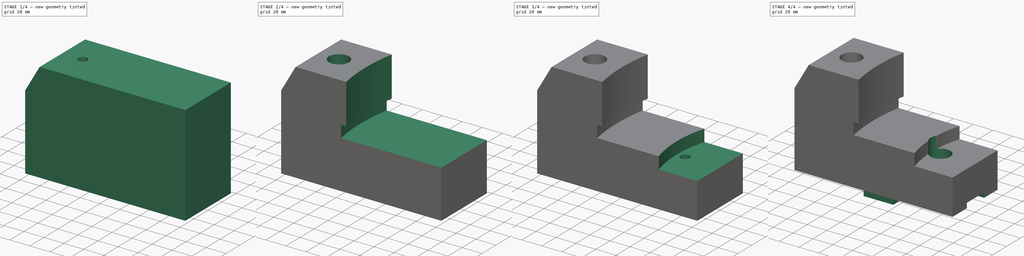
[diagram: build sequence overview — one tinted view per stage of 4, left to right]
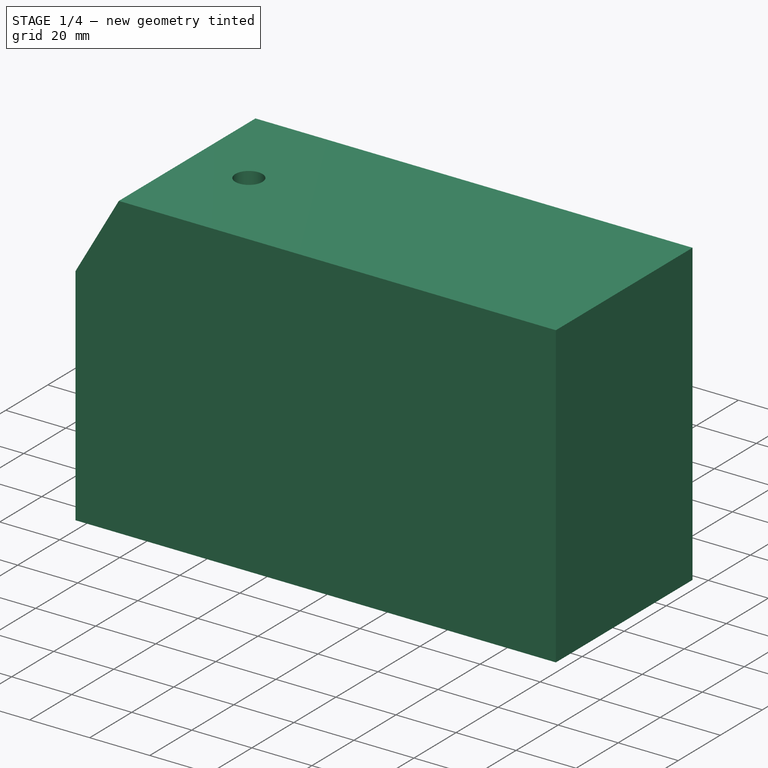
[diagram: stage 1 of 4 — iso view after this stage's code; geometry added in this stage tinted green]
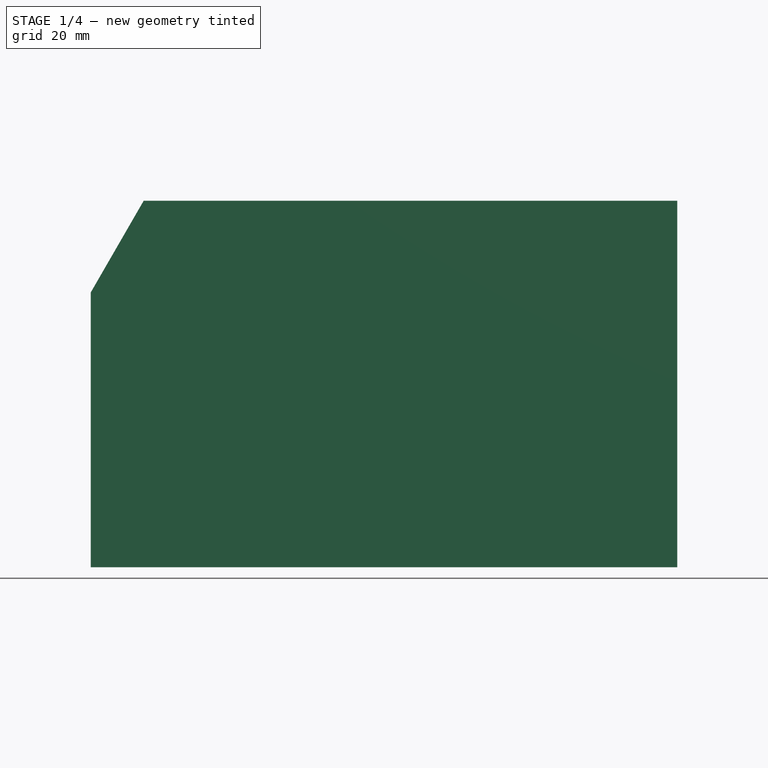
[diagram: stage 1 of 4 — front view after this stage's code; geometry added in this stage tinted green]
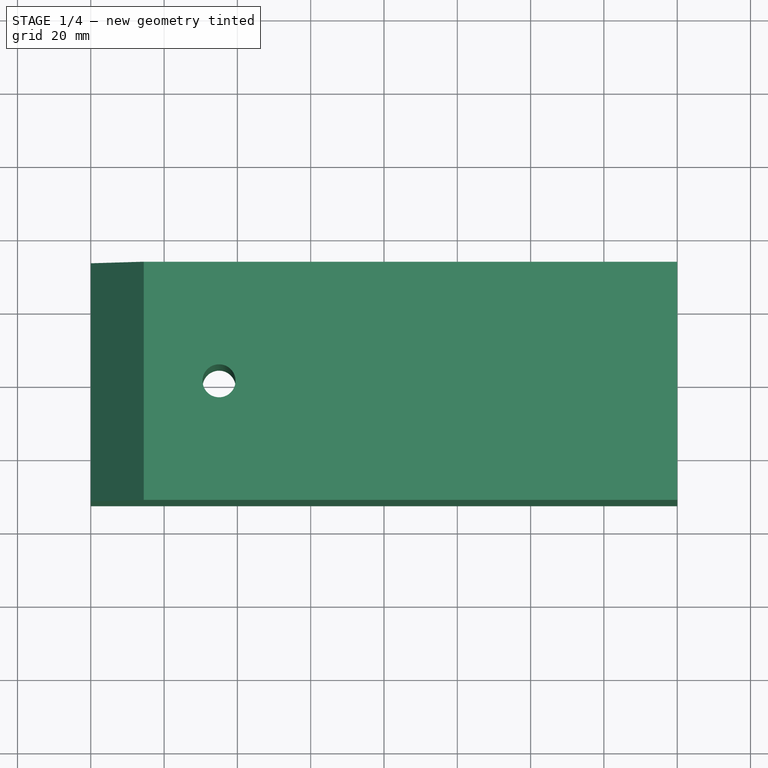
[diagram: stage 1 of 4 — top view after this stage's code; geometry added in this stage tinted green]
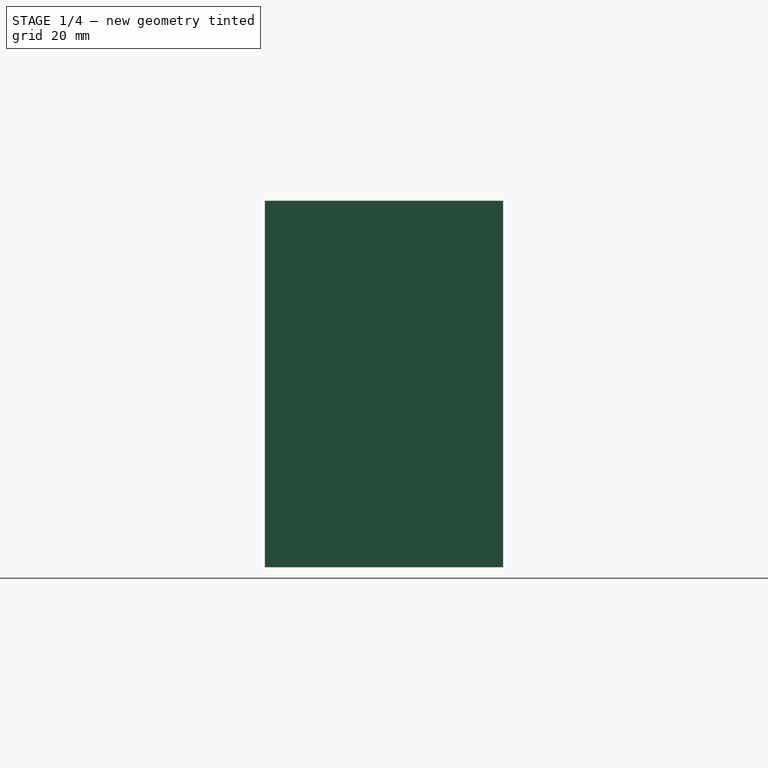
[diagram: stage 1 of 4 — right view after this stage's code; geometry added in this stage tinted green]
FCSTD DOCUMENT  (FreeCAD 0.16R)
Label: Ejer final 24
License: All rights reserved
LicenseURL: http://en.wikipedia.org/wiki/All_rights_reserved
objects: Sketcher::SketchObject×11, PartDesign::Pocket×9, PartDesign::Pad×2
note: 33 computed .brp shape members not serialized (recipe doc carries the construction recipe); baked Part::Feature solids carry a one-line shape summary decoded from their .brp

FEATURE [Sketcher::SketchObject] Sketch
  sketch-geometry (4):
    g0: LineSegment StartX=-80 StartY=32.5 StartZ=0 EndX=80 EndY=32.5 EndZ=0
    g1: LineSegment StartX=80 StartY=32.5 StartZ=0 EndX=80 EndY=-32.5 EndZ=0
    g2: LineSegment StartX=80 StartY=-32.5 StartZ=0 EndX=-80 EndY=-32.5 EndZ=0
    g3: LineSegment StartX=-80 StartY=-32.5 StartZ=0 EndX=-80 EndY=32.5 EndZ=0
  constraints (12):
    c: Coincident(g0,g1)
    c: Coincident(g1,g2)
    c: Coincident(g2,g3)
    c: Coincident(g3,g0)
    c: Horizontal(g0)
    c: Horizontal(g2)
    c: Vertical(g1)
    c: Vertical(g3)
    c: Symmetric(g2,g0,g-1)
    c: Symmetric(g0,g0,g-2)
    c: DistanceY(g3,g3) = 65
    c: DistanceX(g0,g0) = 160
FEATURE [PartDesign::Pad] Pad
  Length = 100
  Length2 = 100
  Sketch = -> Sketch
  Type = 0
FEATURE [Sketcher::SketchObject] Sketch001
  ExternalGeometry = -> [Pad]
  Placement = pos=(0,-32.5,0) rot=(1,0,0;1.5708rad)
  Support = -> Pad [Face3]
  sketch-geometry (3):
    g0: LineSegment StartX=-80 StartY=100 StartZ=0 EndX=-80 EndY=75 EndZ=0
    g1: LineSegment StartX=-80 StartY=75 StartZ=0 EndX=-65.5662 EndY=100 EndZ=0
    g2: LineSegment StartX=-65.5662 StartY=100 StartZ=0 EndX=-80 EndY=100 EndZ=0
  constraints (8):
    c: Coincident(g0,g-3)
    c: Vertical(g0)
    c: DistanceY(g0,g0) = 25
    c: Coincident(g1,g0)
    c: Angle(g1,g0) = 0.523599
    c: PointOnObject(g1,g-3)
    c: Coincident(g2,g1)
    c: Coincident(g2,g0)
FEATURE [PartDesign::Pocket] Pocket
  Length = 5
  Sketch = -> Sketch001
  Type = 1
FEATURE [Sketcher::SketchObject] Sketch002
  ExternalGeometry = -> [Pocket]
  Placement = pos=(0,0,100) rot=(0,0,1;0rad)
  Support = -> Pocket [Face4]
  sketch-geometry (1):
    g0: Circle CenterX=-45 CenterY=0 CenterZ=0 NormalX=0 NormalY=0 NormalZ=1 Radius=4.5
  constraints (3):
    c: Radius(g0) = 4.5
    c: DistanceX(g0,g-3) = 125
    c: PointOnObject(g0,g-1)
FEATURE [PartDesign::Pocket] Pocket001
  Length = 5
  Sketch = -> Sketch002
  Type = 1
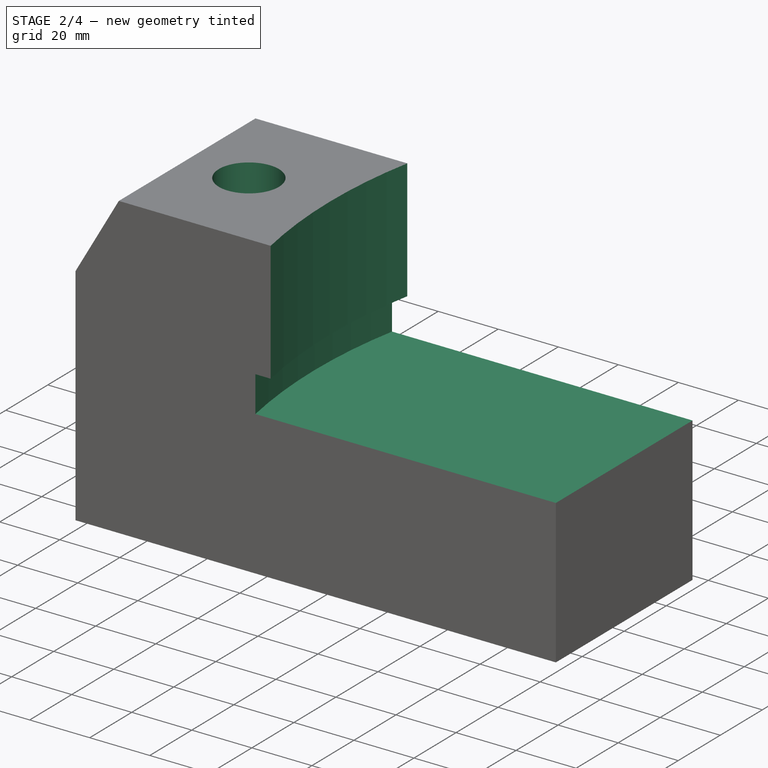
[diagram: stage 2 of 4 — iso view after this stage's code; geometry added in this stage tinted green]
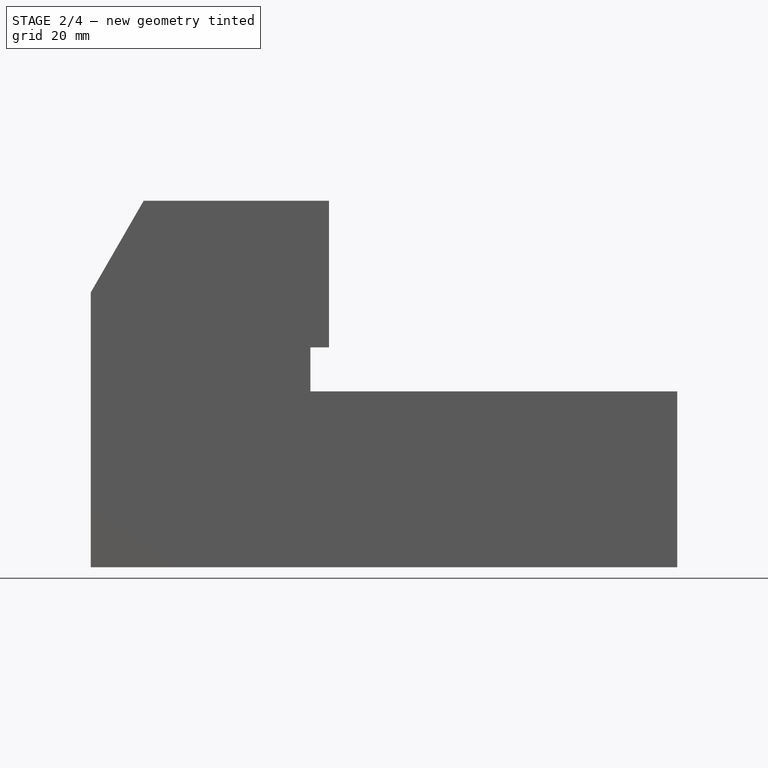
[diagram: stage 2 of 4 — front view after this stage's code; geometry added in this stage tinted green]
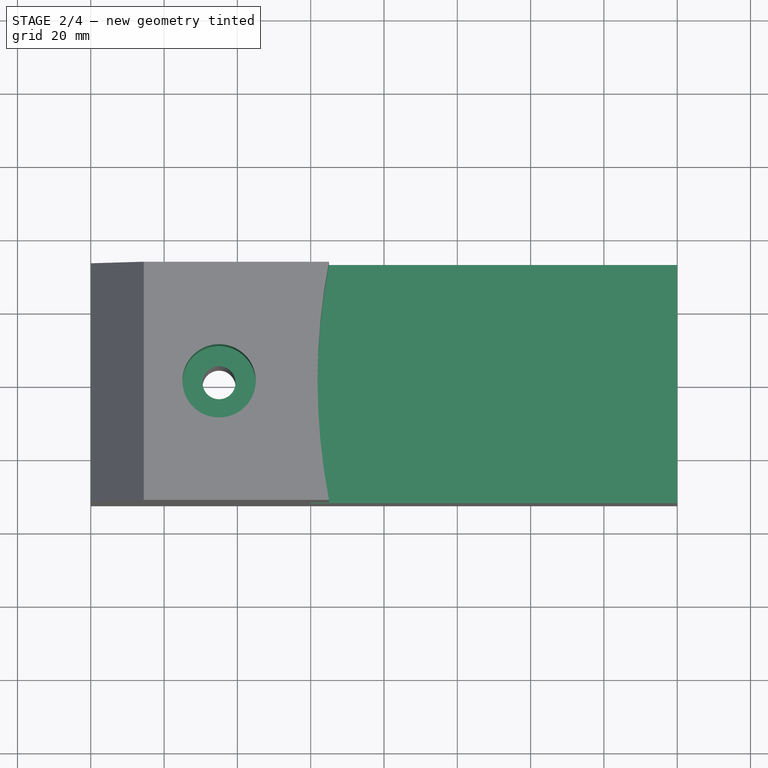
[diagram: stage 2 of 4 — top view after this stage's code; geometry added in this stage tinted green]
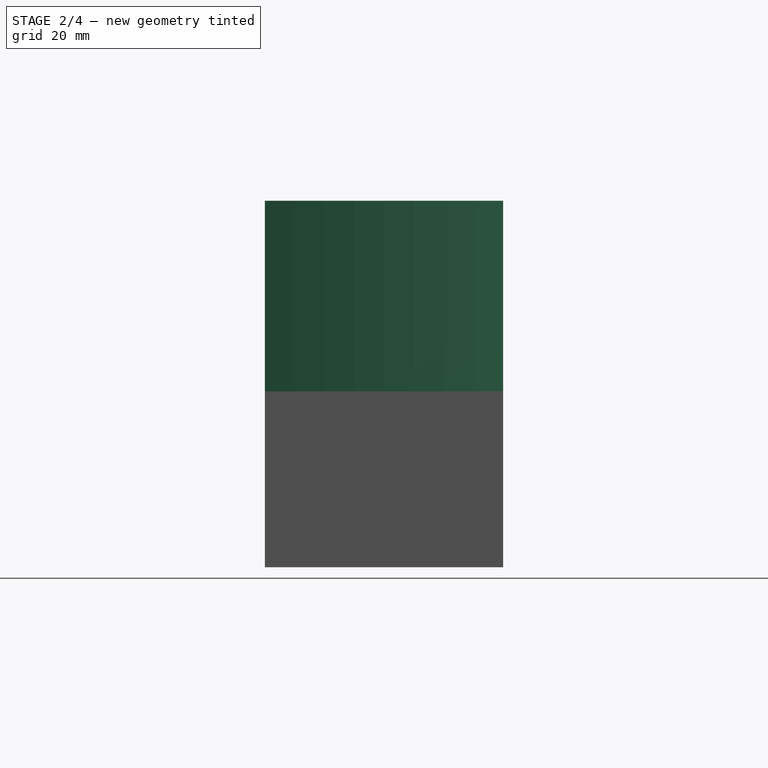
[diagram: stage 2 of 4 — right view after this stage's code; geometry added in this stage tinted green]
FEATURE [Sketcher::SketchObject] Sketch003
  ExternalGeometry = -> [Pocket001]
  Placement = pos=(0,0,100) rot=(0,0,1;0rad)
  Support = -> Pocket001 [Face4]
  sketch-geometry (1):
    g0: Circle CenterX=-45 CenterY=0 CenterZ=0 NormalX=0 NormalY=0 NormalZ=1 Radius=10
  constraints (2):
    c: Coincident(g0,g-3)
    c: Radius(g0) = 10
FEATURE [PartDesign::Pocket] Pocket002
  Length = 30
  Sketch = -> Sketch003
  Type = 0
FEATURE [Sketcher::SketchObject] Sketch004
  ExternalGeometry = -> [Pocket002]
  Placement = pos=(0,0,100) rot=(0,0,1;0rad)
  Support = -> Pocket002 [Face4]
  sketch-geometry (2):
    g0: LineSegment [constr] StartX=80 StartY=32.5 StartZ=0 EndX=-15 EndY=32.5 EndZ=0
    g1: Circle CenterX=151.864 CenterY=0 CenterZ=0 NormalX=0 NormalY=0 NormalZ=1 Radius=170
  constraints (6):
    c: Coincident(g0,g-3)
    c: PointOnObject(g0,g-3)
    c: DistanceX(g0,g0) = 95
    c: PointOnObject(g1,g-1)
    c: Radius(g1) = 170
    c: PointOnObject(g0,g1)
FEATURE [PartDesign::Pocket] Pocket003
  Length = 40
  Sketch = -> Sketch004
  Type = 0
FEATURE [Sketcher::SketchObject] Sketch005
  ExternalGeometry = -> [Pocket003]
  Placement = pos=(0,0,60) rot=(0,0,1;0rad)
  Support = -> Pocket003 [Face4]
  sketch-geometry (1):
    g0: Circle CenterX=151.864 CenterY=0 CenterZ=0 NormalX=0 NormalY=0 NormalZ=1 Radius=175
  constraints (2):
    c: Coincident(g0,g-3)
    c: Radius(g0) = 175
FEATURE [PartDesign::Pocket] Pocket004
  Length = 12
  Sketch = -> Sketch005
  Type = 0
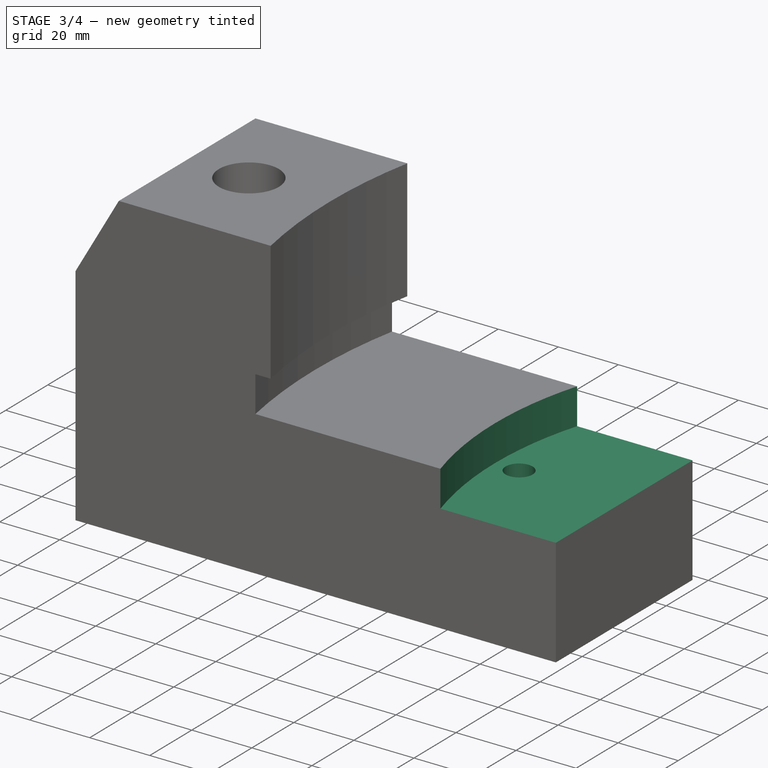
[diagram: stage 3 of 4 — iso view after this stage's code; geometry added in this stage tinted green]
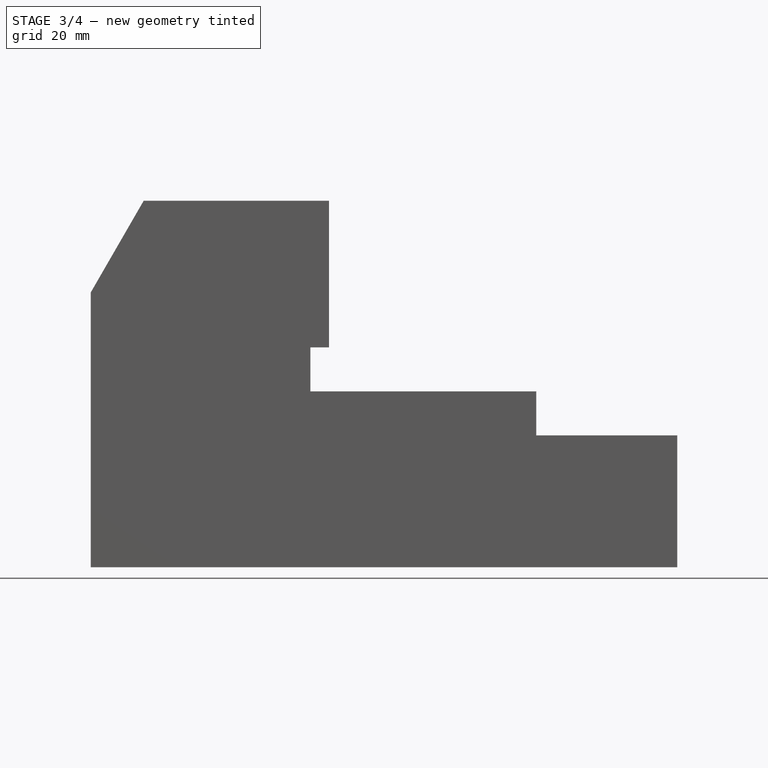
[diagram: stage 3 of 4 — front view after this stage's code; geometry added in this stage tinted green]
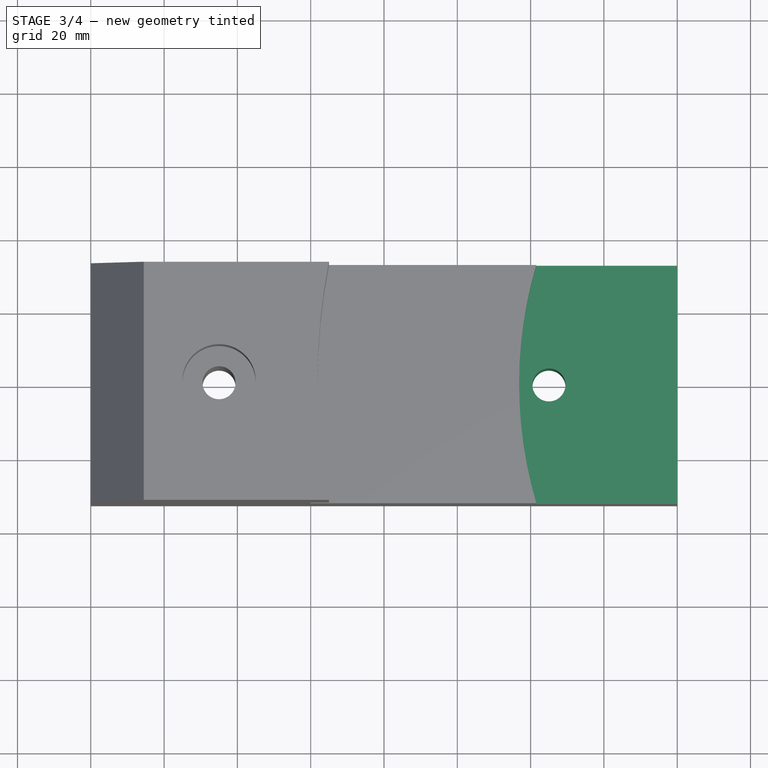
[diagram: stage 3 of 4 — top view after this stage's code; geometry added in this stage tinted green]
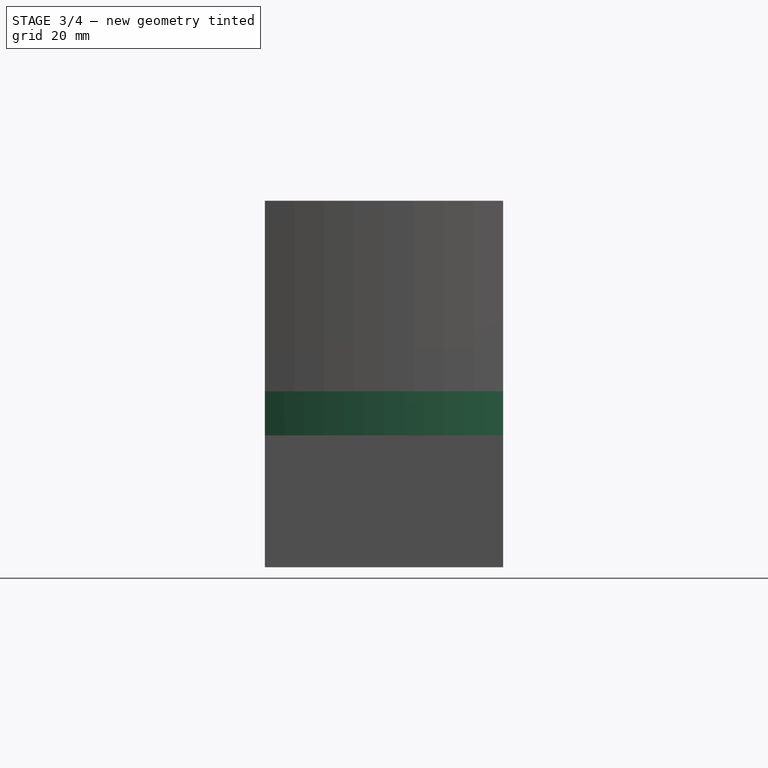
[diagram: stage 3 of 4 — right view after this stage's code; geometry added in this stage tinted green]
FEATURE [Sketcher::SketchObject] Sketch006
  ExternalGeometry = -> [Pocket004]
  Placement = pos=(0,0,48) rot=(0,0,1;0rad)
  Support = -> Pocket004 [Face4]
  sketch-geometry (1):
    g0: Circle CenterX=151.864 CenterY=0 CenterZ=0 NormalX=0 NormalY=0 NormalZ=1 Radius=115
  constraints (2):
    c: Coincident(g0,g-3)
    c: Radius(g0) = 115
FEATURE [PartDesign::Pocket] Pocket005
  Length = 12
  Sketch = -> Sketch006
  Type = 0
FEATURE [Sketcher::SketchObject] Sketch007
  ExternalGeometry = -> [Pocket005]
  Placement = pos=(0,0,36) rot=(0,0,1;0rad)
  Support = -> Pocket005 [Face4]
  sketch-geometry (1):
    g0: Circle CenterX=45 CenterY=0 CenterZ=0 NormalX=0 NormalY=0 NormalZ=1 Radius=4.5
  constraints (3):
    c: PointOnObject(g0,g-1)
    c: Radius(g0) = 4.5
    c: DistanceX(g-3,g0) = 90
FEATURE [PartDesign::Pocket] Pocket006
  Length = 5
  Sketch = -> Sketch007
  Type = 1
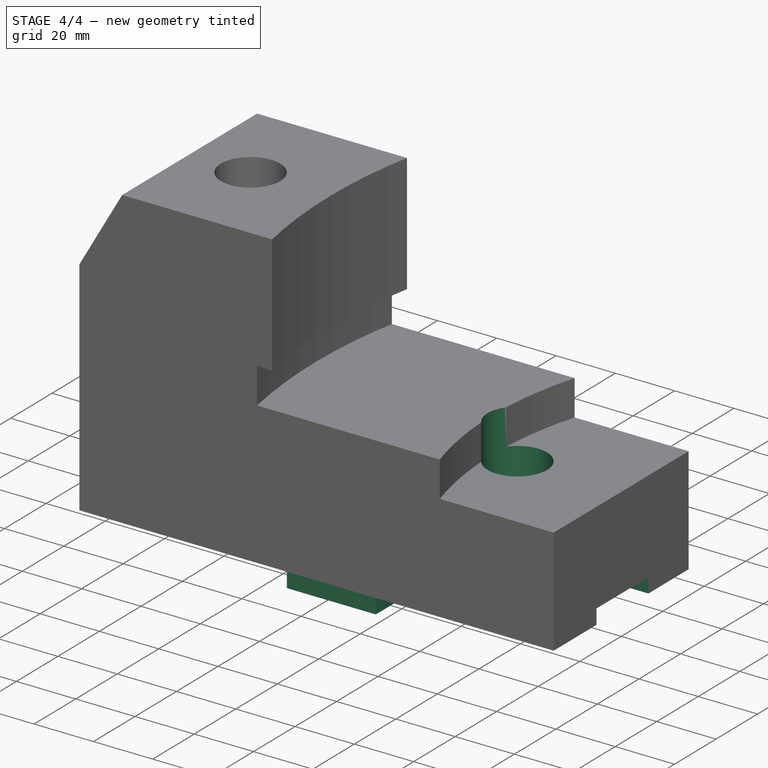
[diagram: stage 4 of 4 — iso view after this stage's code; geometry added in this stage tinted green]
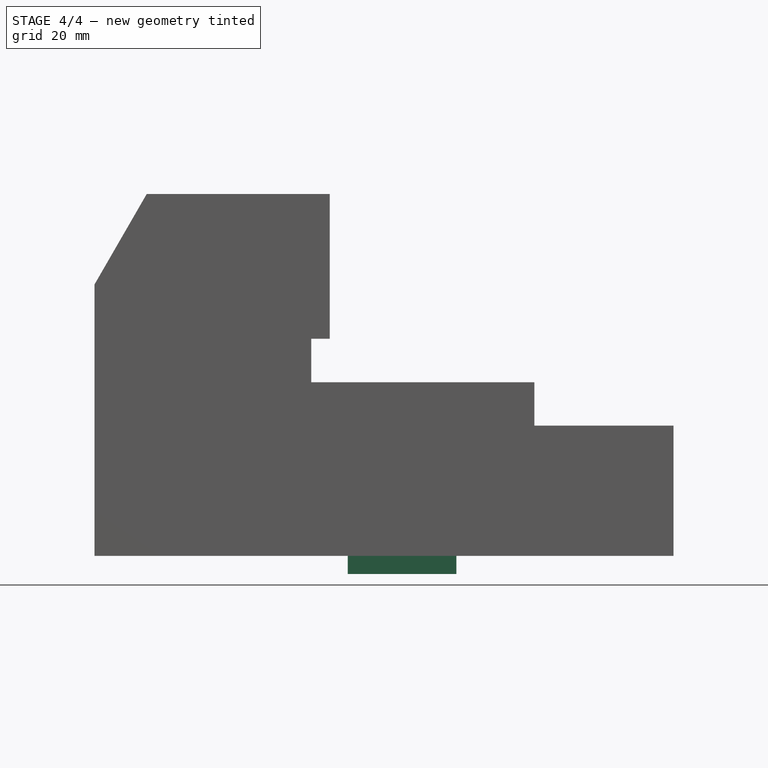
[diagram: stage 4 of 4 — front view after this stage's code; geometry added in this stage tinted green]
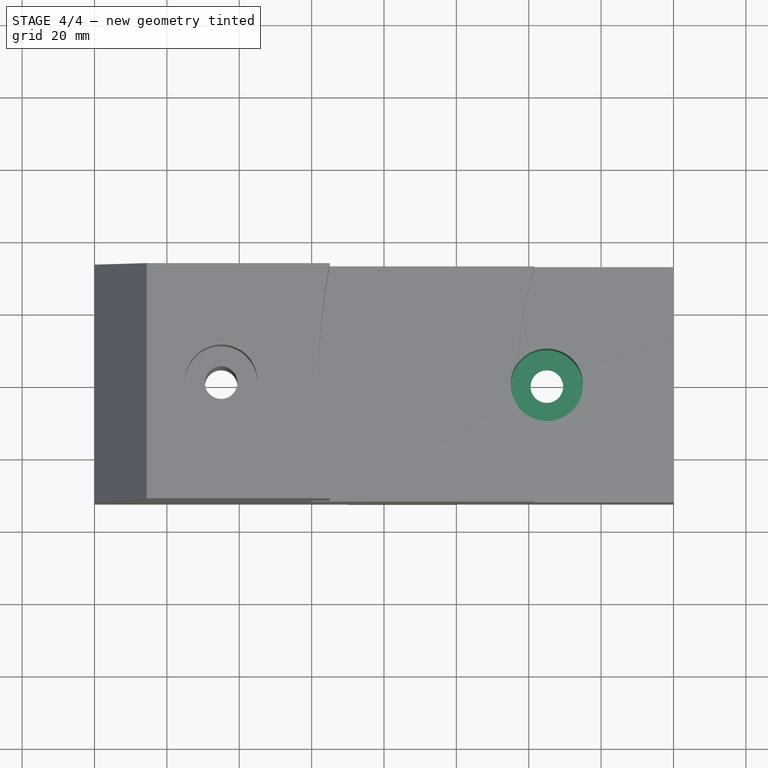
[diagram: stage 4 of 4 — top view after this stage's code; geometry added in this stage tinted green]
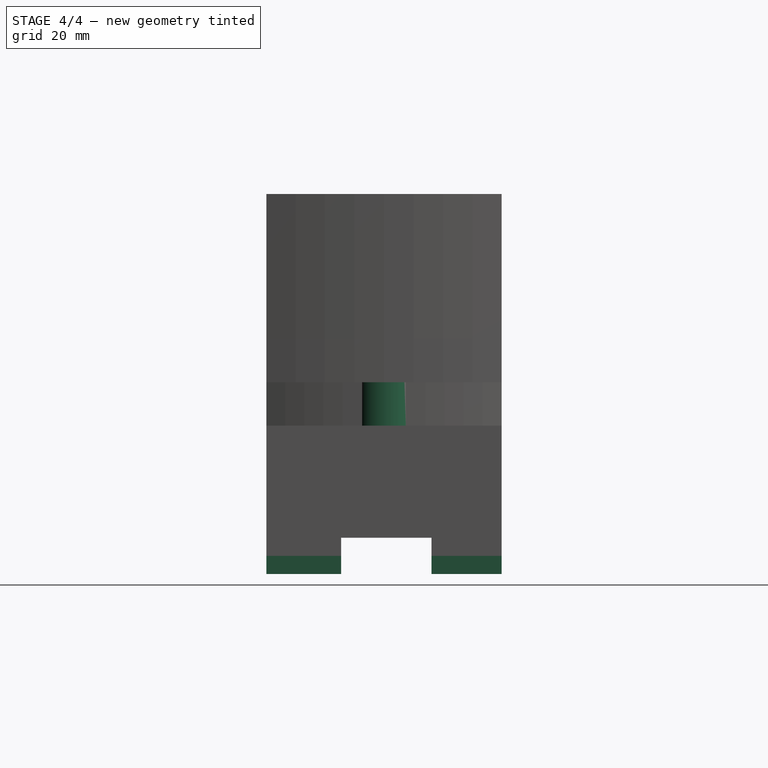
[diagram: stage 4 of 4 — right view after this stage's code; geometry added in this stage tinted green]
FEATURE [Sketcher::SketchObject] Sketch008
  ExternalGeometry = -> [Pocket006]
  Placement = pos=(0,0,36) rot=(0,0,1;0rad)
  Support = -> Pocket006 [Face4]
  sketch-geometry (1):
    g0: Circle CenterX=45 CenterY=0 CenterZ=0 NormalX=0 NormalY=0 NormalZ=1 Radius=10
  constraints (2):
    c: Coincident(g0,g-3)
    c: Radius(g0) = 10
FEATURE [PartDesign::Pocket] Pocket009
  Length = 60
  Midplane = true
  Sketch = -> Sketch008
  Type = 0
FEATURE [Sketcher::SketchObject] Sketch009
  ExternalGeometry = -> [Pocket009]
  Placement = pos=(0,-32.5,0) rot=(1,0,0;1.5708rad)
  Support = -> Pocket009 [Face13]
  sketch-geometry (4):
    g0: LineSegment StartX=-10 StartY=9.23269 StartZ=0 EndX=20 EndY=9.23269 EndZ=0
    g1: LineSegment StartX=20 StartY=9.23269 StartZ=0 EndX=20 EndY=-5 EndZ=0
    g2: LineSegment StartX=20 StartY=-5 StartZ=0 EndX=-10 EndY=-5 EndZ=0
    g3: LineSegment StartX=-10 StartY=-5 StartZ=0 EndX=-10 EndY=9.23269 EndZ=0
  constraints (11):
    c: Coincident(g0,g1)
    c: Coincident(g1,g2)
    c: Coincident(g2,g3)
    c: Coincident(g3,g0)
    c: Horizontal(g0)
    c: Horizontal(g2)
    c: Vertical(g1)
    c: Vertical(g3)
    c: DistanceX(g1,g-3) = 60
    c: DistanceX(g2,g2) = 30
    c: DistanceY(g1,g-3) = 5
FEATURE [PartDesign::Pad] Pad001
  Length = 10
  Length2 = 100
  Reversed = true
  Sketch = -> Sketch009
  Type = 1
FEATURE [Sketcher::SketchObject] Sketch010
  Placement = pos=(80,0,0) rot=(0.57735,0.57735,0.57735;2.0944rad)
  Support = -> Pad001 [Face10]
  sketch-geometry (4):
    g0: LineSegment StartX=-11.8617 StartY=5 StartZ=0 EndX=13.1383 EndY=5 EndZ=0
    g1: LineSegment StartX=13.1383 StartY=5 StartZ=0 EndX=13.1383 EndY=-10.6671 EndZ=0
    g2: LineSegment StartX=13.1383 StartY=-10.6671 StartZ=0 EndX=-11.8617 EndY=-10.6671 EndZ=0
    g3: LineSegment StartX=-11.8617 StartY=-10.6671 StartZ=0 EndX=-11.8617 EndY=5 EndZ=0
  constraints (10):
    c: Coincident(g0,g1)
    c: Coincident(g1,g2)
    c: Coincident(g2,g3)
    c: Coincident(g3,g0)
    c: Horizontal(g0)
    c: Horizontal(g2)
    c: Vertical(g1)
    c: Vertical(g3)
    c: DistanceY(g-1,g0) = 5
    c: DistanceX(g2,g2) = 25
FEATURE [PartDesign::Pocket] Pocket010
  Length = 5
  Sketch = -> Sketch010
  Type = 1
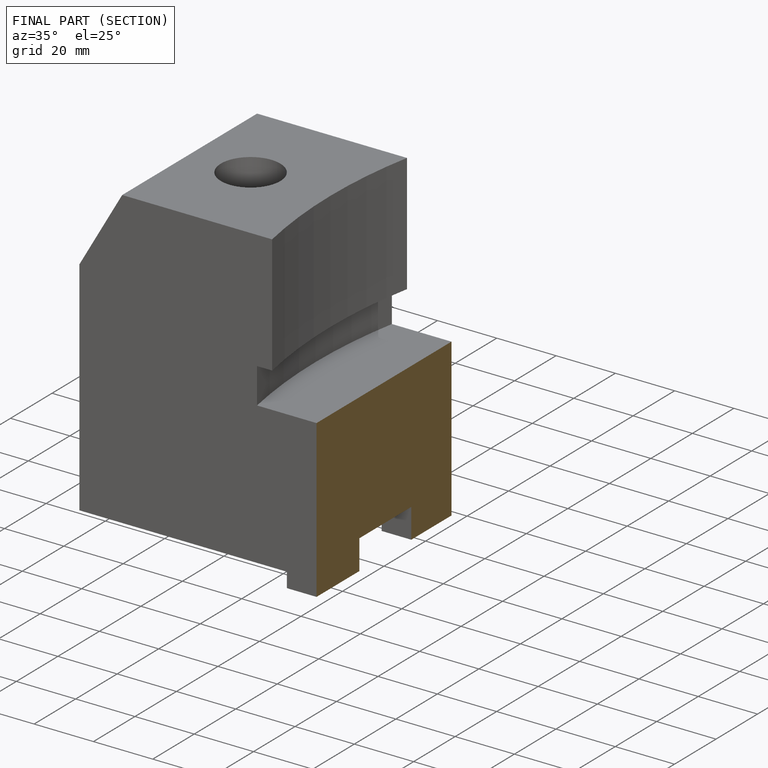
[diagram: finished part — half-section view (interior)]
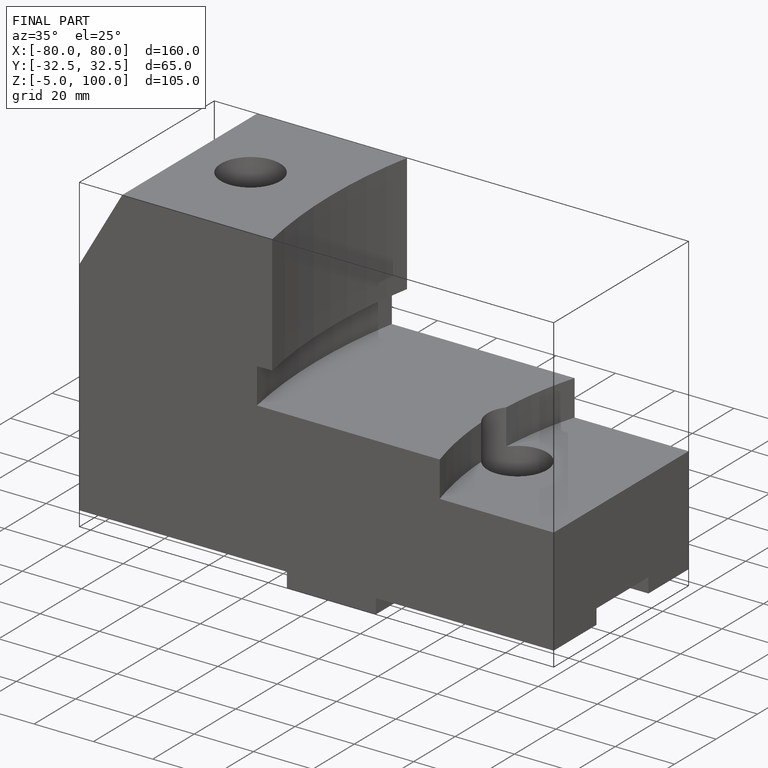
[diagram: finished part — iso view with bounding-box wireframe]
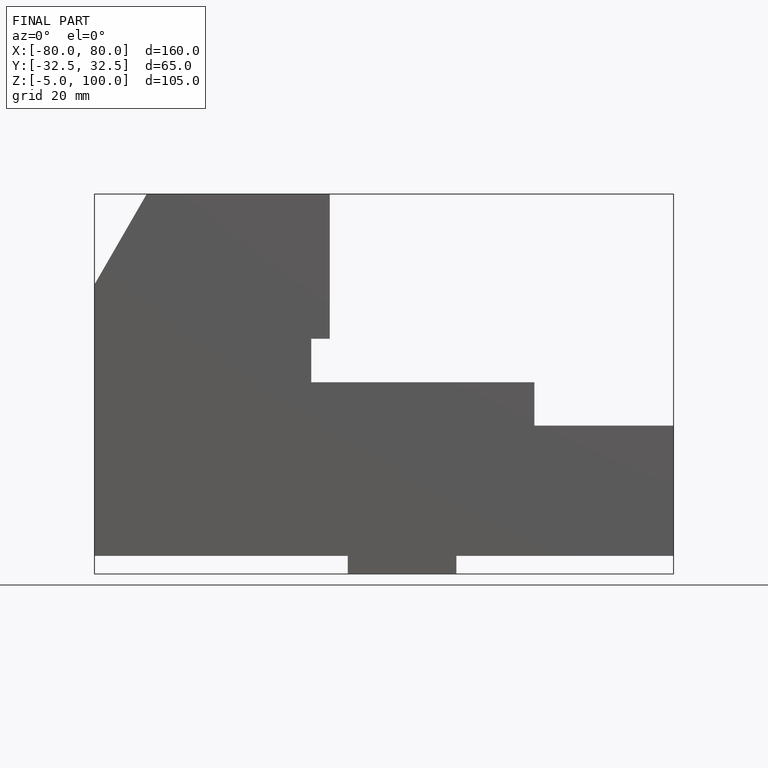
[diagram: finished part — front view with bounding-box wireframe]
